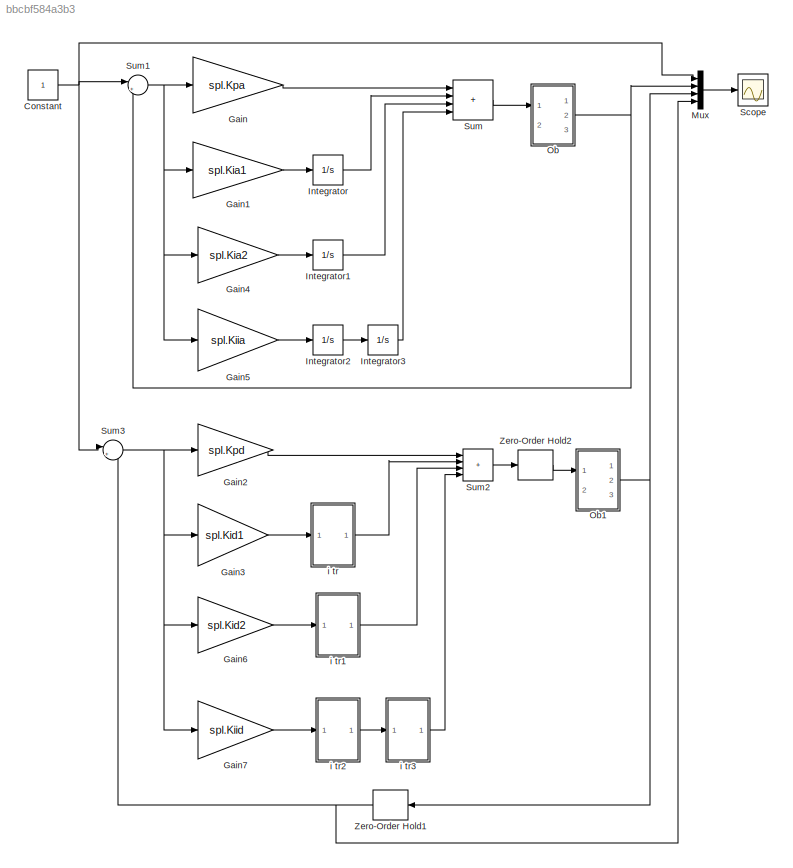
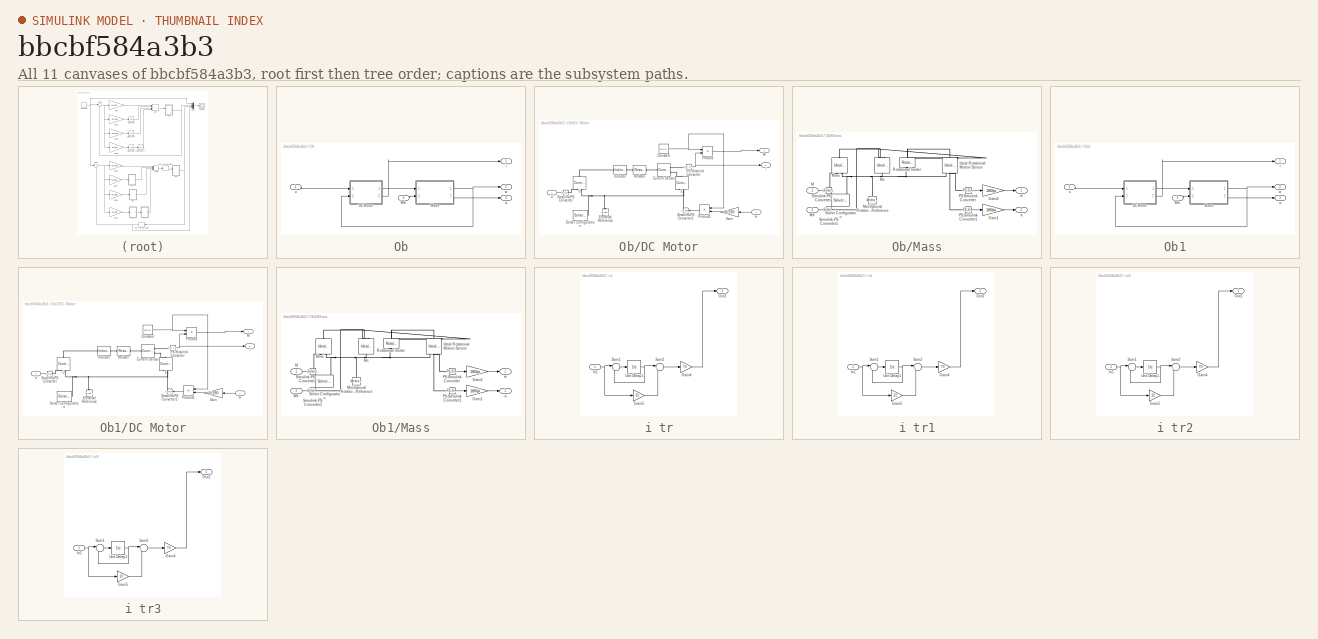
[diagram: thumbnail index - all 11 canvases of the model, root first then tree order]
MODEL slx_bbcbf584a3b3
KIND model
CONFIG AbsTol = auto
CONFIG EnableMultiTasking = off
CONFIG FixedStep = T0/100
CONFIG MaxStep = auto
CONFIG MinStep = auto
CONFIG RelTol = 1e-3
CONFIG SampleTimeConstraint = Unconstrained
CONFIG SolverName = ode3
CONFIG StartTime = 0.0
CONFIG StopTime = Tmdl
BLOCK [Constant] Constant
BLOCK [Gain] Gain
  Gain = spl.Kpa
BLOCK [Gain] Gain1
  Gain = spl.Kia1
BLOCK [Gain] Gain2
  Gain = spl.Kpd
BLOCK [Gain] Gain3
  Gain = spl.Kid1
BLOCK [Gain] Gain4
  Gain = spl.Kia2
BLOCK [Gain] Gain5
  Gain = spl.Kiia
BLOCK [Gain] Gain6
  Gain = spl.Kid2
BLOCK [Gain] Gain7
  Gain = spl.Kiid
BLOCK [Integrator] Integrator
  Ports = [1, 1]
BLOCK [Integrator] Integrator1
  Ports = [1, 1]
BLOCK [Integrator] Integrator2
  Ports = [1, 1]
BLOCK [Integrator] Integrator3
  Ports = [1, 1]
BLOCK [Mux] Mux
  DisplayOption = bar
  Ports = [4, 1]
BLOCK [SubSystem] Ob
  Ports = [2, 3]
  RequestExecContextInheritance = off
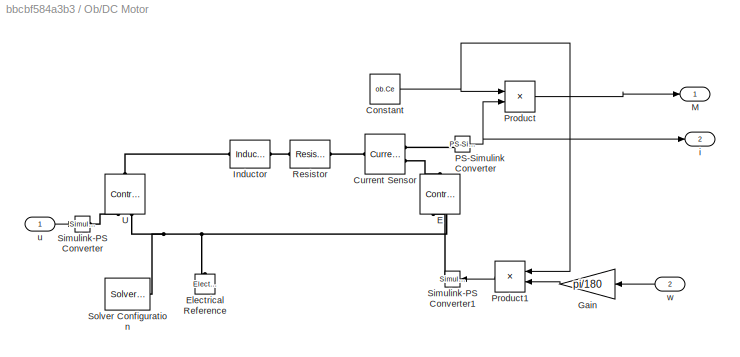
BLOCK [SubSystem] Ob/DC Motor
  Ports = [2, 2]
  RequestExecContextInheritance = off
BLOCK [Constant] Ob/DC Motor/Constant
  Value = ob.Ce
BLOCK [Reference] Ob/DC Motor/Current Sensor  REF=fl_lib/Electrical/Electrical Sensors/Current Sensor
  Ports = [0, 0, 0, 0, 0, 1, 2]
  SourceBlock = fl_lib/Electrical/Electrical Sensors/Current Sensor
  SourceProductBaseCode = PW,SS,VE
  SourceType = Current Sensor
BLOCK [Reference] Ob/DC Motor/E  REF=fl_lib/Electrical/Electrical Sources/Controlled Voltage
Source
  NameLocation = right
  Ports = [0, 0, 0, 0, 0, 1, 2]
  SourceBlock = fl_lib/Electrical/Electrical Sources/Controlled Voltage\nSource
  SourceProductBaseCode = PW,SS,VE
  SourceType = Controlled Voltage\nSource
BLOCK [Reference] Ob/DC Motor/Electrical Reference  REF=fl_lib/Electrical/Electrical Elements/Electrical Reference
  NameLocation = right
  Ports = [0, 0, 0, 0, 0, 1]
  SourceBlock = fl_lib/Electrical/Electrical Elements/Electrical Reference
  SourceProductBaseCode = PW,SS,VE
  SourceType = Electrical Reference
BLOCK [Gain] Ob/DC Motor/Gain
  Gain = pi/180
  NameLocation = top
BLOCK [Reference] Ob/DC Motor/Inductor  REF=fl_lib/Electrical/Electrical Elements/Inductor
  Ports = [0, 0, 0, 0, 0, 1, 1]
  SourceBlock = fl_lib/Electrical/Electrical Elements/Inductor
  SourceProductBaseCode = PW,SS,VE
  SourceType = Inductor
BLOCK [Outport] Ob/DC Motor/M
BLOCK [Reference] Ob/DC Motor/PS-Simulink Converter  REF=nesl_utility/PS-Simulink
Converter
  Ports = [0, 1, 0, 0, 0, 1]
  SourceBlock = nesl_utility/PS-Simulink\nConverter
  SourceProductBaseCode = SS,PW,VE
  SourceType = PS-Simulink\nConverter
BLOCK [Product] Ob/DC Motor/Product
  Ports = [2, 1]
BLOCK [Product] Ob/DC Motor/Product1
  NameLocation = top
  Ports = [2, 1]
BLOCK [Reference] Ob/DC Motor/Resistor  REF=fl_lib/Electrical/Electrical Elements/Resistor
  Ports = [0, 0, 0, 0, 0, 1, 1]
  SourceBlock = fl_lib/Electrical/Electrical Elements/Resistor
  SourceProductBaseCode = PW,SS,VE
  SourceType = Resistor
BLOCK [Reference] Ob/DC Motor/Simulink-PS Converter  REF=nesl_utility/Simulink-PS
Converter
  Ports = [1, 0, 0, 0, 0, 0, 1]
  SourceBlock = nesl_utility/Simulink-PS\nConverter
  SourceProductBaseCode = SS,PW,VE
  SourceType = Simulink-PS\nConverter
BLOCK [Reference] Ob/DC Motor/Simulink-PS Converter1  REF=nesl_utility/Simulink-PS
Converter
  NameLocation = top
  Ports = [1, 0, 0, 0, 0, 0, 1]
  SourceBlock = nesl_utility/Simulink-PS\nConverter
  SourceProductBaseCode = SS,PW,VE
  SourceType = Simulink-PS\nConverter
BLOCK [Reference] Ob/DC Motor/Solver Configuration  REF=nesl_utility/Solver
Configuration
  Ports = [0, 0, 0, 0, 0, 0, 1]
  SourceBlock = nesl_utility/Solver\nConfiguration
  SourceProductBaseCode = SS,PW,VE
  SourceType = Solver\nConfiguration
BLOCK [Reference] Ob/DC Motor/U  REF=fl_lib/Electrical/Electrical Sources/Controlled Voltage
Source
  NameLocation = right
  Ports = [0, 0, 0, 0, 0, 1, 2]
  SourceBlock = fl_lib/Electrical/Electrical Sources/Controlled Voltage\nSource
  SourceProductBaseCode = PW,SS,VE
  SourceType = Controlled Voltage\nSource
BLOCK [Outport] Ob/DC Motor/i
  Port = 2
BLOCK [Inport] Ob/DC Motor/u
BLOCK [Inport] Ob/DC Motor/w
  Port = 2
BLOCK [SubSystem] Ob/Mass
  Ports = [2, 2]
  RequestExecContextInheritance = off
BLOCK [Gain] Ob/Mass/Gain1
  Gain = 180/pi
BLOCK [Gain] Ob/Mass/Gain2
  Gain = 180/pi
BLOCK [Reference] Ob/Mass/Ideal Rotational Motion Sensor  REF=fl_lib/Mechanical/Mechanical Sensors/Ideal Rotational
Motion Sensor
  NameLocation = left
  Ports = [0, 0, 0, 0, 0, 1, 3]
  SourceBlock = fl_lib/Mechanical/Mechanical Sensors/Ideal Rotational\nMotion Sensor
  SourceProductBaseCode = PW,SS,VE
  SourceType = Ideal Rotational\nMotion Sensor
BLOCK [Inport] Ob/Mass/M
BLOCK [Reference] Ob/Mass/Mc  REF=fl_lib/Mechanical/Mechanical Sources/Ideal Torque Source
  NameLocation = left
  Ports = [0, 0, 0, 0, 0, 1, 2]
  SourceBlock = fl_lib/Mechanical/Mechanical Sources/Ideal Torque Source
  SourceProductBaseCode = PW,SS,VE
  SourceType = Ideal Torque Source
BLOCK [Reference] Ob/Mass/Mechanical Rotational Reference  REF=fl_lib/Mechanical/Rotational Elements/Mechanical
Rotational Reference
  NameLocation = right
  Ports = [0, 0, 0, 0, 0, 1]
  SourceBlock = fl_lib/Mechanical/Rotational Elements/Mechanical\nRotational Reference
  SourceProductBaseCode = PW,SS,VE
  SourceType = Mechanical\nRotational Reference
BLOCK [Inport] Ob/Mass/Mfr
  Port = 2
BLOCK [Reference] Ob/Mass/Mme  REF=fl_lib/Mechanical/Mechanical Sources/Ideal Torque Source
  NameLocation = right
  Ports = [0, 0, 0, 0, 0, 1, 2]
  SourceBlock = fl_lib/Mechanical/Mechanical Sources/Ideal Torque Source
  SourceProductBaseCode = PW,SS,VE
  SourceType = Ideal Torque Source
BLOCK [Reference] Ob/Mass/PS-Simulink Converter  REF=nesl_utility/PS-Simulink
Converter
  Ports = [0, 1, 0, 0, 0, 1]
  SourceBlock = nesl_utility/PS-Simulink\nConverter
  SourceProductBaseCode = SS,PW,VE
  SourceType = PS-Simulink\nConverter
BLOCK [Reference] Ob/Mass/PS-Simulink Converter1  REF=nesl_utility/PS-Simulink
Converter
  Ports = [0, 1, 0, 0, 0, 1]
  SourceBlock = nesl_utility/PS-Simulink\nConverter
  SourceProductBaseCode = SS,PW,VE
  SourceType = PS-Simulink\nConverter
BLOCK [Reference] Ob/Mass/Rotational Inerter  REF=fl_lib/Mechanical/Rotational Elements/Rotational Inerter
  NameLocation = left
  Ports = [0, 0, 0, 0, 0, 1, 1]
  SourceBlock = fl_lib/Mechanical/Rotational Elements/Rotational Inerter
  SourceProductBaseCode = PW,SS,VE
  SourceType = Rotational Inerter
BLOCK [Reference] Ob/Mass/Simulink-PS Converter  REF=nesl_utility/Simulink-PS
Converter
  Ports = [1, 0, 0, 0, 0, 0, 1]
  SourceBlock = nesl_utility/Simulink-PS\nConverter
  SourceProductBaseCode = SS,PW,VE
  SourceType = Simulink-PS\nConverter
BLOCK [Reference] Ob/Mass/Simulink-PS Converter1  REF=nesl_utility/Simulink-PS
Converter
  Ports = [1, 0, 0, 0, 0, 0, 1]
  SourceBlock = nesl_utility/Simulink-PS\nConverter
  SourceProductBaseCode = SS,PW,VE
  SourceType = Simulink-PS\nConverter
BLOCK [Reference] Ob/Mass/Solver Configuration  REF=nesl_utility/Solver
Configuration
  Ports = [0, 0, 0, 0, 0, 0, 1]
  SourceBlock = nesl_utility/Solver\nConfiguration
  SourceProductBaseCode = SS,PW,VE
  SourceType = Solver\nConfiguration
BLOCK [Outport] Ob/Mass/a
  Port = 2
BLOCK [Outport] Ob/Mass/w
BLOCK [Inport] Ob/Mfr
  Port = 2
BLOCK [Outport] Ob/a
  Port = 3
BLOCK [Outport] Ob/i
BLOCK [Inport] Ob/u
BLOCK [Outport] Ob/w
  Port = 2
BLOCK [SubSystem] Ob1
  Ports = [2, 3]
  RequestExecContextInheritance = off
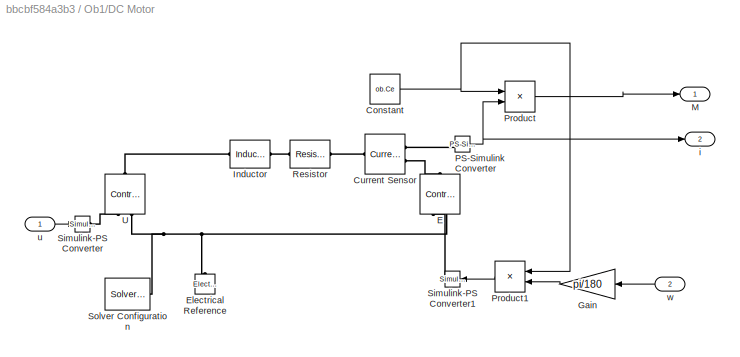
BLOCK [SubSystem] Ob1/DC Motor
  Ports = [2, 2]
  RequestExecContextInheritance = off
BLOCK [Constant] Ob1/DC Motor/Constant
  Value = ob.Ce
BLOCK [Reference] Ob1/DC Motor/Current Sensor  REF=fl_lib/Electrical/Electrical Sensors/Current Sensor
  Ports = [0, 0, 0, 0, 0, 1, 2]
  SourceBlock = fl_lib/Electrical/Electrical Sensors/Current Sensor
  SourceProductBaseCode = PW,SS,VE
  SourceType = Current Sensor
BLOCK [Reference] Ob1/DC Motor/E  REF=fl_lib/Electrical/Electrical Sources/Controlled Voltage
Source
  NameLocation = right
  Ports = [0, 0, 0, 0, 0, 1, 2]
  SourceBlock = fl_lib/Electrical/Electrical Sources/Controlled Voltage\nSource
  SourceProductBaseCode = PW,SS,VE
  SourceType = Controlled Voltage\nSource
BLOCK [Reference] Ob1/DC Motor/Electrical Reference  REF=fl_lib/Electrical/Electrical Elements/Electrical Reference
  NameLocation = right
  Ports = [0, 0, 0, 0, 0, 1]
  SourceBlock = fl_lib/Electrical/Electrical Elements/Electrical Reference
  SourceProductBaseCode = PW,SS,VE
  SourceType = Electrical Reference
BLOCK [Gain] Ob1/DC Motor/Gain
  Gain = pi/180
  NameLocation = top
BLOCK [Reference] Ob1/DC Motor/Inductor  REF=fl_lib/Electrical/Electrical Elements/Inductor
  Ports = [0, 0, 0, 0, 0, 1, 1]
  SourceBlock = fl_lib/Electrical/Electrical Elements/Inductor
  SourceProductBaseCode = PW,SS,VE
  SourceType = Inductor
BLOCK [Outport] Ob1/DC Motor/M
BLOCK [Reference] Ob1/DC Motor/PS-Simulink Converter  REF=nesl_utility/PS-Simulink
Converter
  Ports = [0, 1, 0, 0, 0, 1]
  SourceBlock = nesl_utility/PS-Simulink\nConverter
  SourceProductBaseCode = SS,PW,VE
  SourceType = PS-Simulink\nConverter
BLOCK [Product] Ob1/DC Motor/Product
  Ports = [2, 1]
BLOCK [Product] Ob1/DC Motor/Product1
  NameLocation = top
  Ports = [2, 1]
BLOCK [Reference] Ob1/DC Motor/Resistor  REF=fl_lib/Electrical/Electrical Elements/Resistor
  Ports = [0, 0, 0, 0, 0, 1, 1]
  SourceBlock = fl_lib/Electrical/Electrical Elements/Resistor
  SourceProductBaseCode = PW,SS,VE
  SourceType = Resistor
BLOCK [Reference] Ob1/DC Motor/Simulink-PS Converter  REF=nesl_utility/Simulink-PS
Converter
  Ports = [1, 0, 0, 0, 0, 0, 1]
  SourceBlock = nesl_utility/Simulink-PS\nConverter
  SourceProductBaseCode = SS,PW,VE
  SourceType = Simulink-PS\nConverter
BLOCK [Reference] Ob1/DC Motor/Simulink-PS Converter1  REF=nesl_utility/Simulink-PS
Converter
  NameLocation = top
  Ports = [1, 0, 0, 0, 0, 0, 1]
  SourceBlock = nesl_utility/Simulink-PS\nConverter
  SourceProductBaseCode = SS,PW,VE
  SourceType = Simulink-PS\nConverter
BLOCK [Reference] Ob1/DC Motor/Solver Configuration  REF=nesl_utility/Solver
Configuration
  Ports = [0, 0, 0, 0, 0, 0, 1]
  SourceBlock = nesl_utility/Solver\nConfiguration
  SourceProductBaseCode = SS,PW,VE
  SourceType = Solver\nConfiguration
BLOCK [Reference] Ob1/DC Motor/U  REF=fl_lib/Electrical/Electrical Sources/Controlled Voltage
Source
  NameLocation = right
  Ports = [0, 0, 0, 0, 0, 1, 2]
  SourceBlock = fl_lib/Electrical/Electrical Sources/Controlled Voltage\nSource
  SourceProductBaseCode = PW,SS,VE
  SourceType = Controlled Voltage\nSource
BLOCK [Outport] Ob1/DC Motor/i
  Port = 2
BLOCK [Inport] Ob1/DC Motor/u
BLOCK [Inport] Ob1/DC Motor/w
  Port = 2
BLOCK [SubSystem] Ob1/Mass
  Ports = [2, 2]
  RequestExecContextInheritance = off
BLOCK [Gain] Ob1/Mass/Gain1
  Gain = 180/pi
BLOCK [Gain] Ob1/Mass/Gain2
  Gain = 180/pi
BLOCK [Reference] Ob1/Mass/Ideal Rotational Motion Sensor  REF=fl_lib/Mechanical/Mechanical Sensors/Ideal Rotational
Motion Sensor
  NameLocation = left
  Ports = [0, 0, 0, 0, 0, 1, 3]
  SourceBlock = fl_lib/Mechanical/Mechanical Sensors/Ideal Rotational\nMotion Sensor
  SourceProductBaseCode = PW,SS,VE
  SourceType = Ideal Rotational\nMotion Sensor
BLOCK [Inport] Ob1/Mass/M
BLOCK [Reference] Ob1/Mass/Mc  REF=fl_lib/Mechanical/Mechanical Sources/Ideal Torque Source
  NameLocation = left
  Ports = [0, 0, 0, 0, 0, 1, 2]
  SourceBlock = fl_lib/Mechanical/Mechanical Sources/Ideal Torque Source
  SourceProductBaseCode = PW,SS,VE
  SourceType = Ideal Torque Source
BLOCK [Reference] Ob1/Mass/Mechanical Rotational Reference  REF=fl_lib/Mechanical/Rotational Elements/Mechanical
Rotational Reference
  NameLocation = right
  Ports = [0, 0, 0, 0, 0, 1]
  SourceBlock = fl_lib/Mechanical/Rotational Elements/Mechanical\nRotational Reference
  SourceProductBaseCode = PW,SS,VE
  SourceType = Mechanical\nRotational Reference
BLOCK [Inport] Ob1/Mass/Mfr
  Port = 2
BLOCK [Reference] Ob1/Mass/Mme  REF=fl_lib/Mechanical/Mechanical Sources/Ideal Torque Source
  NameLocation = right
  Ports = [0, 0, 0, 0, 0, 1, 2]
  SourceBlock = fl_lib/Mechanical/Mechanical Sources/Ideal Torque Source
  SourceProductBaseCode = PW,SS,VE
  SourceType = Ideal Torque Source
BLOCK [Reference] Ob1/Mass/PS-Simulink Converter  REF=nesl_utility/PS-Simulink
Converter
  Ports = [0, 1, 0, 0, 0, 1]
  SourceBlock = nesl_utility/PS-Simulink\nConverter
  SourceProductBaseCode = SS,PW,VE
  SourceType = PS-Simulink\nConverter
BLOCK [Reference] Ob1/Mass/PS-Simulink Converter1  REF=nesl_utility/PS-Simulink
Converter
  Ports = [0, 1, 0, 0, 0, 1]
  SourceBlock = nesl_utility/PS-Simulink\nConverter
  SourceProductBaseCode = SS,PW,VE
  SourceType = PS-Simulink\nConverter
BLOCK [Reference] Ob1/Mass/Rotational Inerter  REF=fl_lib/Mechanical/Rotational Elements/Rotational Inerter
  NameLocation = left
  Ports = [0, 0, 0, 0, 0, 1, 1]
  SourceBlock = fl_lib/Mechanical/Rotational Elements/Rotational Inerter
  SourceProductBaseCode = PW,SS,VE
  SourceType = Rotational Inerter
BLOCK [Reference] Ob1/Mass/Simulink-PS Converter  REF=nesl_utility/Simulink-PS
Converter
  Ports = [1, 0, 0, 0, 0, 0, 1]
  SourceBlock = nesl_utility/Simulink-PS\nConverter
  SourceProductBaseCode = SS,PW,VE
  SourceType = Simulink-PS\nConverter
BLOCK [Reference] Ob1/Mass/Simulink-PS Converter1  REF=nesl_utility/Simulink-PS
Converter
  Ports = [1, 0, 0, 0, 0, 0, 1]
  SourceBlock = nesl_utility/Simulink-PS\nConverter
  SourceProductBaseCode = SS,PW,VE
  SourceType = Simulink-PS\nConverter
BLOCK [Reference] Ob1/Mass/Solver Configuration  REF=nesl_utility/Solver
Configuration
  Ports = [0, 0, 0, 0, 0, 0, 1]
  SourceBlock = nesl_utility/Solver\nConfiguration
  SourceProductBaseCode = SS,PW,VE
  SourceType = Solver\nConfiguration
BLOCK [Outport] Ob1/Mass/a
  Port = 2
BLOCK [Outport] Ob1/Mass/w
BLOCK [Inport] Ob1/Mfr
  Port = 2
BLOCK [Outport] Ob1/a
  Port = 3
BLOCK [Outport] Ob1/i
BLOCK [Inport] Ob1/u
BLOCK [Outport] Ob1/w
  Port = 2
BLOCK [Scope] Scope
  Floating = off
  NumInputPorts = 1
  Ports = [1]
  ScopeSpecificationString = Simulink.scopes.TimeScopeBlockCfg('CurrentConfiguration', extmgr.ConfigurationSet(extmgr.Configuration('Core','General UI',true),extmgr.Configuration('Core','Source UI',true),extmgr.Configuration('Sources','WiredSimulink',true,'DataLogging',true,'DataLoggingVariableName','w','DataLoggingSaveFormat','Array'),extmgr.Configuration('Visuals','Time Domain',true,'SerializedDisplays',{struct('MinYLimReal...<+1580ch>
BLOCK [Sum] Sum
  IconShape = rectangular
  Inputs = +|+|+|+
  Ports = [4, 1]
BLOCK [Sum] Sum1
  Inputs = |+-
  Ports = [2, 1]
BLOCK [Sum] Sum2
  IconShape = rectangular
  Inputs = +|+|+|+
  Ports = [4, 1]
BLOCK [Sum] Sum3
  Inputs = |+-
  Ports = [2, 1]
BLOCK [ZeroOrderHold] Zero-Order Hold1
  NameLocation = top
  SampleTime = T0
BLOCK [ZeroOrderHold] Zero-Order Hold2
  SampleTime = T0
BLOCK [SubSystem] i tr
  Ports = [1, 1]
  RequestExecContextInheritance = off
BLOCK [Gain] i tr/Gain4
  Gain = T0
BLOCK [Gain] i tr/Gain5
  Gain = 1/2
BLOCK [Inport] i tr/In1
BLOCK [Outport] i tr/Out1
BLOCK [Sum] i tr/Sum1
  Inputs = |++
  Ports = [2, 1]
BLOCK [Sum] i tr/Sum2
  Inputs = |++
  Ports = [2, 1]
BLOCK [UnitDelay] i tr/Unit Delay1
  HasFrameUpgradeWarning = on
  SampleTime = -1
BLOCK [SubSystem] i tr1
  Ports = [1, 1]
  RequestExecContextInheritance = off
BLOCK [Gain] i tr1/Gain4
  Gain = T0
BLOCK [Gain] i tr1/Gain5
  Gain = 1/2
BLOCK [Inport] i tr1/In1
BLOCK [Outport] i tr1/Out1
BLOCK [Sum] i tr1/Sum1
  Inputs = |++
  Ports = [2, 1]
BLOCK [Sum] i tr1/Sum2
  Inputs = |++
  Ports = [2, 1]
BLOCK [UnitDelay] i tr1/Unit Delay1
  HasFrameUpgradeWarning = on
  SampleTime = -1
BLOCK [SubSystem] i tr2
  Ports = [1, 1]
  RequestExecContextInheritance = off
BLOCK [Gain] i tr2/Gain4
  Gain = T0
BLOCK [Gain] i tr2/Gain5
  Gain = 1/2
BLOCK [Inport] i tr2/In1
BLOCK [Outport] i tr2/Out1
BLOCK [Sum] i tr2/Sum1
  Inputs = |++
  Ports = [2, 1]
BLOCK [Sum] i tr2/Sum2
  Inputs = |++
  Ports = [2, 1]
BLOCK [UnitDelay] i tr2/Unit Delay1
  HasFrameUpgradeWarning = on
  SampleTime = -1
BLOCK [SubSystem] i tr3
  Ports = [1, 1]
  RequestExecContextInheritance = off
BLOCK [Gain] i tr3/Gain4
  Gain = T0
BLOCK [Gain] i tr3/Gain5
  Gain = 1/2
BLOCK [Inport] i tr3/In1
BLOCK [Outport] i tr3/Out1
BLOCK [Sum] i tr3/Sum1
  Inputs = |++
  Ports = [2, 1]
BLOCK [Sum] i tr3/Sum2
  Inputs = |++
  Ports = [2, 1]
BLOCK [UnitDelay] i tr3/Unit Delay1
  HasFrameUpgradeWarning = on
  SampleTime = -1
NET Constant:1 -> Mux:1, Sum1:1, Sum3:1
LINE Gain1:1 -> Integrator:1
LINE Gain2:1 -> Sum2:1
LINE Gain3:1 -> i tr:1
LINE Gain4:1 -> Integrator1:1
LINE Gain5:1 -> Integrator2:1
LINE Gain6:1 -> i tr1:1
LINE Gain7:1 -> i tr2:1
LINE Gain:1 -> Sum:1
LINE Integrator1:1 -> Sum:3
LINE Integrator2:1 -> Integrator3:1
LINE Integrator3:1 -> Sum:4
LINE Integrator:1 -> Sum:2
LINE Mux:1 -> Scope:1
NET Ob/DC Motor/Constant:1 -> Ob/DC Motor/Product1:1, Ob/DC Motor/Product:1
LINE Ob/DC Motor/Gain:1 -> Ob/DC Motor/Product1:2
NET Ob/DC Motor/PS-Simulink Converter:1 -> Ob/DC Motor/Product:2, Ob/DC Motor/i:1
LINE Ob/DC Motor/Product1:1 -> Ob/DC Motor/Simulink-PS Converter1:1
LINE Ob/DC Motor/Product:1 -> Ob/DC Motor/M:1
LINE Ob/DC Motor/u:1 -> Ob/DC Motor/Simulink-PS Converter:1
LINE Ob/DC Motor/w:1 -> Ob/DC Motor/Gain:1
LINE Ob/DC Motor:1 -> Ob/Mass:1
LINE Ob/DC Motor:2 -> Ob/i:1
LINE Ob/Mass/Gain1:1 -> Ob/Mass/a:1
LINE Ob/Mass/Gain2:1 -> Ob/Mass/w:1
LINE Ob/Mass/M:1 -> Ob/Mass/Simulink-PS Converter:1
LINE Ob/Mass/Mfr:1 -> Ob/Mass/Simulink-PS Converter1:1
LINE Ob/Mass/PS-Simulink Converter1:1 -> Ob/Mass/Gain1:1
LINE Ob/Mass/PS-Simulink Converter:1 -> Ob/Mass/Gain2:1
NET Ob/Mass:1 -> Ob/DC Motor:2, Ob/w:1
LINE Ob/Mass:2 -> Ob/a:1
LINE Ob/Mfr:1 -> Ob/Mass:2
LINE Ob/u:1 -> Ob/DC Motor:1
NET Ob1/DC Motor/Constant:1 -> Ob1/DC Motor/Product1:1, Ob1/DC Motor/Product:1
LINE Ob1/DC Motor/Gain:1 -> Ob1/DC Motor/Product1:2
NET Ob1/DC Motor/PS-Simulink Converter:1 -> Ob1/DC Motor/Product:2, Ob1/DC Motor/i:1
LINE Ob1/DC Motor/Product1:1 -> Ob1/DC Motor/Simulink-PS Converter1:1
LINE Ob1/DC Motor/Product:1 -> Ob1/DC Motor/M:1
LINE Ob1/DC Motor/u:1 -> Ob1/DC Motor/Simulink-PS Converter:1
LINE Ob1/DC Motor/w:1 -> Ob1/DC Motor/Gain:1
LINE Ob1/DC Motor:1 -> Ob1/Mass:1
LINE Ob1/DC Motor:2 -> Ob1/i:1
LINE Ob1/Mass/Gain1:1 -> Ob1/Mass/a:1
LINE Ob1/Mass/Gain2:1 -> Ob1/Mass/w:1
LINE Ob1/Mass/M:1 -> Ob1/Mass/Simulink-PS Converter:1
LINE Ob1/Mass/Mfr:1 -> Ob1/Mass/Simulink-PS Converter1:1
LINE Ob1/Mass/PS-Simulink Converter1:1 -> Ob1/Mass/Gain1:1
LINE Ob1/Mass/PS-Simulink Converter:1 -> Ob1/Mass/Gain2:1
NET Ob1/Mass:1 -> Ob1/DC Motor:2, Ob1/w:1
LINE Ob1/Mass:2 -> Ob1/a:1
LINE Ob1/Mfr:1 -> Ob1/Mass:2
LINE Ob1/u:1 -> Ob1/DC Motor:1
NET Ob1:2 -> Mux:3, Zero-Order Hold1:1
NET Ob:2 -> Mux:2, Sum1:2
NET Sum1:1 -> Gain1:1, Gain4:1, Gain5:1, Gain:1
LINE Sum2:1 -> Zero-Order Hold2:1
NET Sum3:1 -> Gain2:1, Gain3:1, Gain6:1, Gain7:1
LINE Sum:1 -> Ob:1
NET Zero-Order Hold1:1 -> Mux:4, Sum3:2
LINE Zero-Order Hold2:1 -> Ob1:1
LINE i tr/Gain4:1 -> i tr/Out1:1
LINE i tr/Gain5:1 -> i tr/Sum2:2
NET i tr/In1:1 -> i tr/Gain5:1, i tr/Sum1:1
LINE i tr/Sum1:1 -> i tr/Unit Delay1:1
LINE i tr/Sum2:1 -> i tr/Gain4:1
NET i tr/Unit Delay1:1 -> i tr/Sum1:2, i tr/Sum2:1
LINE i tr1/Gain4:1 -> i tr1/Out1:1
LINE i tr1/Gain5:1 -> i tr1/Sum2:2
NET i tr1/In1:1 -> i tr1/Gain5:1, i tr1/Sum1:1
LINE i tr1/Sum1:1 -> i tr1/Unit Delay1:1
LINE i tr1/Sum2:1 -> i tr1/Gain4:1
NET i tr1/Unit Delay1:1 -> i tr1/Sum1:2, i tr1/Sum2:1
LINE i tr1:1 -> Sum2:3
LINE i tr2/Gain4:1 -> i tr2/Out1:1
LINE i tr2/Gain5:1 -> i tr2/Sum2:2
NET i tr2/In1:1 -> i tr2/Gain5:1, i tr2/Sum1:1
LINE i tr2/Sum1:1 -> i tr2/Unit Delay1:1
LINE i tr2/Sum2:1 -> i tr2/Gain4:1
NET i tr2/Unit Delay1:1 -> i tr2/Sum1:2, i tr2/Sum2:1
LINE i tr2:1 -> i tr3:1
LINE i tr3/Gain4:1 -> i tr3/Out1:1
LINE i tr3/Gain5:1 -> i tr3/Sum2:2
NET i tr3/In1:1 -> i tr3/Gain5:1, i tr3/Sum1:1
LINE i tr3/Sum1:1 -> i tr3/Unit Delay1:1
LINE i tr3/Sum2:1 -> i tr3/Gain4:1
NET i tr3/Unit Delay1:1 -> i tr3/Sum1:2, i tr3/Sum2:1
LINE i tr3:1 -> Sum2:4
LINE i tr:1 -> Sum2:2
PLINE Ob/DC Motor/Current Sensor:LConn1 -- Ob/DC Motor/Resistor:RConn1
PLINE Ob/DC Motor/Current Sensor:RConn1 -- Ob/DC Motor/PS-Simulink Converter:LConn1
PLINE Ob/DC Motor/Current Sensor:RConn2 -- Ob/DC Motor/E:LConn1
PLINE Ob/DC Motor/E:RConn1 -- Ob/DC Motor/Simulink-PS Converter1:RConn1
PNET net1: Ob/DC Motor/E:RConn2 -- Ob/DC Motor/Electrical Reference:LConn1 -- Ob/DC Motor/Solver Configuration:RConn1 -- Ob/DC Motor/U:RConn2
PLINE Ob/DC Motor/Inductor:LConn1 -- Ob/DC Motor/U:LConn1
PLINE Ob/DC Motor/Inductor:RConn1 -- Ob/DC Motor/Resistor:LConn1
PLINE Ob/DC Motor/Simulink-PS Converter:RConn1 -- Ob/DC Motor/U:RConn1
PNET net2: Ob/Mass/Ideal Rotational Motion Sensor:LConn1 -- Ob/Mass/Mc:RConn2 -- Ob/Mass/Mme:LConn1 -- Ob/Mass/Rotational Inerter:LConn1
PNET net3: Ob/Mass/Ideal Rotational Motion Sensor:RConn1 -- Ob/Mass/Mc:LConn1 -- Ob/Mass/Mechanical Rotational Reference:LConn1 -- Ob/Mass/Mme:RConn2 -- Ob/Mass/Rotational Inerter:RConn1 -- Ob/Mass/Solver Configuration:RConn1
PLINE Ob/Mass/Ideal Rotational Motion Sensor:RConn2 -- Ob/Mass/PS-Simulink Converter:LConn1
PLINE Ob/Mass/Ideal Rotational Motion Sensor:RConn3 -- Ob/Mass/PS-Simulink Converter1:LConn1
PLINE Ob/Mass/Mc:RConn1 -- Ob/Mass/Simulink-PS Converter1:RConn1
PLINE Ob/Mass/Mme:RConn1 -- Ob/Mass/Simulink-PS Converter:RConn1
PLINE Ob1/DC Motor/Current Sensor:LConn1 -- Ob1/DC Motor/Resistor:RConn1
PLINE Ob1/DC Motor/Current Sensor:RConn1 -- Ob1/DC Motor/PS-Simulink Converter:LConn1
PLINE Ob1/DC Motor/Current Sensor:RConn2 -- Ob1/DC Motor/E:LConn1
PLINE Ob1/DC Motor/E:RConn1 -- Ob1/DC Motor/Simulink-PS Converter1:RConn1
PNET net4: Ob1/DC Motor/E:RConn2 -- Ob1/DC Motor/Electrical Reference:LConn1 -- Ob1/DC Motor/Solver Configuration:RConn1 -- Ob1/DC Motor/U:RConn2
PLINE Ob1/DC Motor/Inductor:LConn1 -- Ob1/DC Motor/U:LConn1
PLINE Ob1/DC Motor/Inductor:RConn1 -- Ob1/DC Motor/Resistor:LConn1
PLINE Ob1/DC Motor/Simulink-PS Converter:RConn1 -- Ob1/DC Motor/U:RConn1
PNET net5: Ob1/Mass/Ideal Rotational Motion Sensor:LConn1 -- Ob1/Mass/Mc:RConn2 -- Ob1/Mass/Mme:LConn1 -- Ob1/Mass/Rotational Inerter:LConn1
PNET net6: Ob1/Mass/Ideal Rotational Motion Sensor:RConn1 -- Ob1/Mass/Mc:LConn1 -- Ob1/Mass/Mechanical Rotational Reference:LConn1 -- Ob1/Mass/Mme:RConn2 -- Ob1/Mass/Rotational Inerter:RConn1 -- Ob1/Mass/Solver Configuration:RConn1
PLINE Ob1/Mass/Ideal Rotational Motion Sensor:RConn2 -- Ob1/Mass/PS-Simulink Converter:LConn1
PLINE Ob1/Mass/Ideal Rotational Motion Sensor:RConn3 -- Ob1/Mass/PS-Simulink Converter1:LConn1
PLINE Ob1/Mass/Mc:RConn1 -- Ob1/Mass/Simulink-PS Converter1:RConn1
PLINE Ob1/Mass/Mme:RConn1 -- Ob1/Mass/Simulink-PS Converter:RConn1
note: NET lines group one-source signal fan-out (src -> all destinations, sorted); 1:1 wires keep LINE; PNET lines group multi-terminal physical nets as a canonical sorted terminal list (undirected conserving connections); 2-terminal nets keep the pairwise PLINE form
